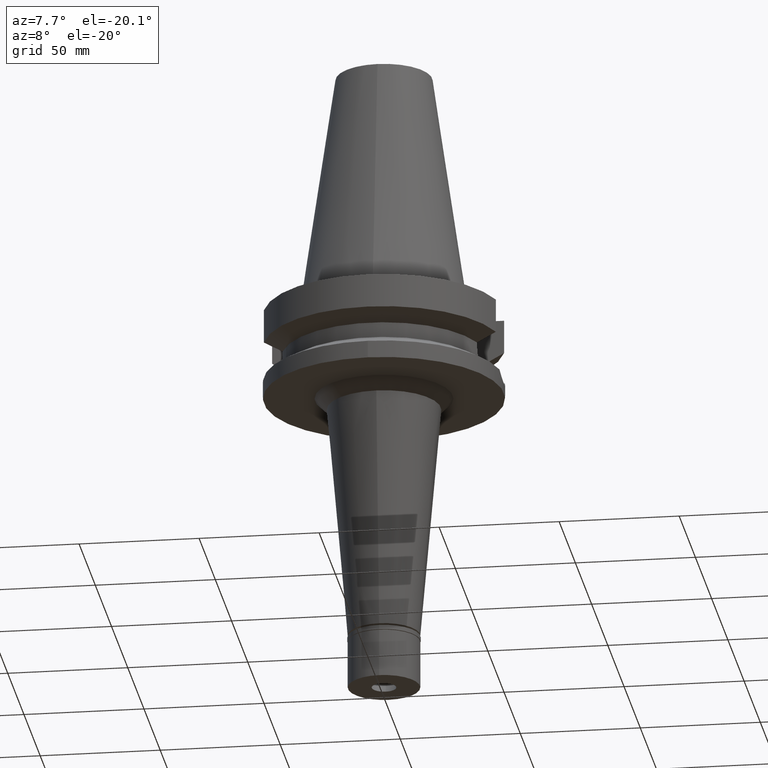
[diagram: clean part render]
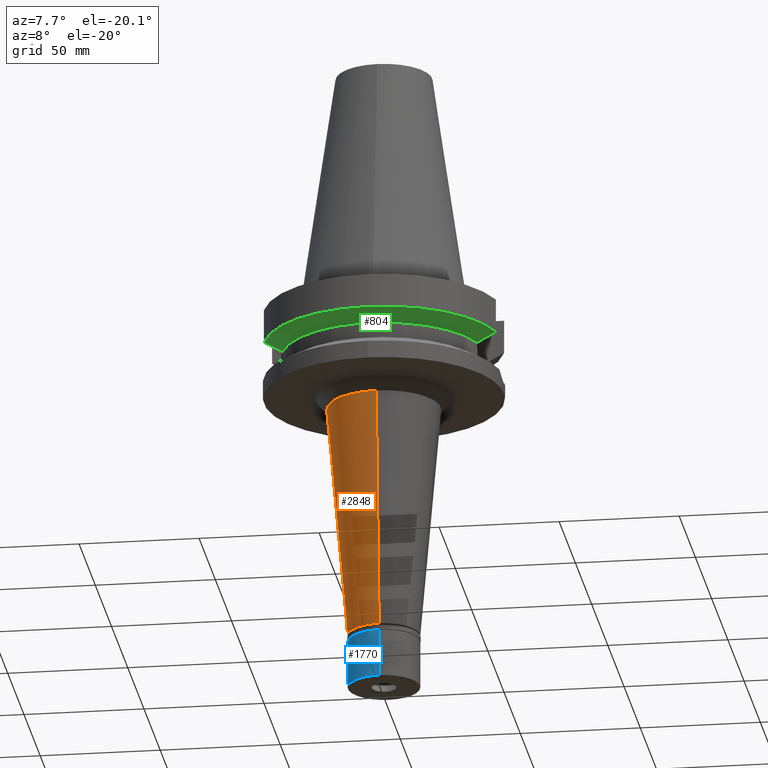
[diagram: same view with three faces highlighted in distinct colors, each labeled with its STEP entity id]
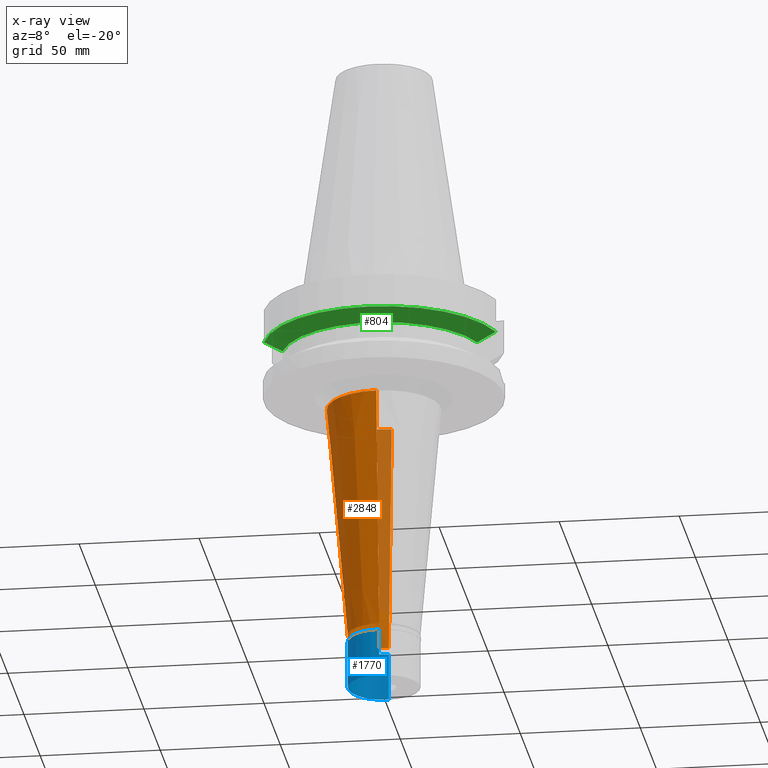
[diagram: x-ray of the same camera — body ghosted, the three highlighted faces saturated]
A machine part, auxiliary view with three faces highlighted in distinct colors.
The next image is the same camera in x-ray (body ghosted, the three faces saturated) — at least one of them is partly hidden behind the body in this view.
Their STEP definitions:

[orange] entity #2848 — the highlighted conical surface has half-angle 5 deg.
#116 = EDGE_LOOP ( 'NONE', ( #3019, #1730, #304, #2744 ) ) ;
#131 = CARTESIAN_POINT ( 'NONE',  ( 0.0000000000000000000, -15.00000000000000000, -142.1999999999999886 ) ) ;
#249 = FACE_OUTER_BOUND ( 'NONE', #116, .T. ) ;
#263 = DIRECTION ( 'NONE',  ( 0.0000000000000000000, 1.000000000000000000, 0.0000000000000000000 ) ) ;
#304 = ORIENTED_EDGE ( 'NONE', *, *, #3023, .T. ) ;
#398 = CARTESIAN_POINT ( 'NONE',  ( 0.0000000000000000000, 23.67887542176999816, -43.00000000000000000 ) ) ;
#406 = DIRECTION ( 'NONE',  ( 0.0000000000000000000, 0.08715574274764407992, -0.9961946980917467664 ) ) ;
#457 = EDGE_CURVE ( 'NONE', #1703, #2061, #2130, .T. ) ;
#750 = VECTOR ( 'NONE', #406, 1000.000000000000114 ) ;
#764 = CARTESIAN_POINT ( 'NONE',  ( 0.0000000000000000000, 0.0000000000000000000, -92.60000000000000853 ) ) ;
#839 = DIRECTION ( 'NONE',  ( 0.0000000000000000000, -1.000000000000000000, 0.0000000000000000000 ) ) ;
#847 = DIRECTION ( 'NONE',  ( 0.0000000000000000000, -0.08715574274764407992, -0.9961946980917467664 ) ) ;
#949 = DIRECTION ( 'NONE',  ( 0.0000000000000000000, 0.0000000000000000000, 1.000000000000000000 ) ) ;
#1024 = CARTESIAN_POINT ( 'NONE',  ( 0.0000000000000000000, 0.0000000000000000000, -43.00000000000000000 ) ) ;
#1461 = VECTOR ( 'NONE', #847, 1000.000000000000114 ) ;
#1644 = LINE ( 'NONE', #2632, #750 ) ;
#1678 = DIRECTION ( 'NONE',  ( 0.0000000000000000000, 0.0000000000000000000, 1.000000000000000000 ) ) ;
#1690 = AXIS2_PLACEMENT_3D ( 'NONE', #1024, #2070, #839 ) ;
#1703 = VERTEX_POINT ( 'NONE', #398 ) ;
#1730 = ORIENTED_EDGE ( 'NONE', *, *, #2752, .F. ) ;
#1760 = AXIS2_PLACEMENT_3D ( 'NONE', #2900, #1678, #1915 ) ;
#1881 = CARTESIAN_POINT ( 'NONE',  ( 0.0000000000000000000, -23.67887542176999816, -43.00000000000000000 ) ) ;
#1915 = DIRECTION ( 'NONE',  ( 0.0000000000000000000, 1.000000000000000000, 0.0000000000000000000 ) ) ;
#2061 = VERTEX_POINT ( 'NONE', #2361 ) ;
#2070 = DIRECTION ( 'NONE',  ( 0.0000000000000000000, 0.0000000000000000000, -1.000000000000000000 ) ) ;
#2098 = VERTEX_POINT ( 'NONE', #1881 ) ;
#2121 = EDGE_CURVE ( 'NONE', #2061, #3179, #2265, .T. ) ;
#2130 = LINE ( 'NONE', #2371, #1461 ) ;
#2147 = AXIS2_PLACEMENT_3D ( 'NONE', #764, #949, #263 ) ;
#2248 = CIRCLE ( 'NONE', #1690, 23.67887542176999816 ) ;
#2265 = CIRCLE ( 'NONE', #1760, 15.00000000000000000 ) ;
#2345 = CONICAL_SURFACE ( 'NONE', #2147, 19.33943771088999952, 0.08726646259969973729 ) ;
#2361 = CARTESIAN_POINT ( 'NONE',  ( 0.0000000000000000000, 15.00000000000000000, -142.1999999999999886 ) ) ;
#2371 = CARTESIAN_POINT ( 'NONE',  ( 0.0000000000000000000, 23.67887542176999816, -43.00000000000000000 ) ) ;
#2632 = CARTESIAN_POINT ( 'NONE',  ( 0.0000000000000000000, -23.67887542176999816, -43.00000000000000000 ) ) ;
#2744 = ORIENTED_EDGE ( 'NONE', *, *, #457, .T. ) ;
#2752 = EDGE_CURVE ( 'NONE', #2098, #3179, #1644, .T. ) ;
#2848 = ADVANCED_FACE ( 'NONE', ( #249 ), #2345, .T. ) ;
#2900 = CARTESIAN_POINT ( 'NONE',  ( 0.0000000000000000000, 0.0000000000000000000, -142.1999999999999886 ) ) ;
#3019 = ORIENTED_EDGE ( 'NONE', *, *, #2121, .T. ) ;
#3023 = EDGE_CURVE ( 'NONE', #2098, #1703, #2248, .T. ) ;
#3179 = VERTEX_POINT ( 'NONE', #131 ) ;

[blue] entity #1770 — the highlighted cylindrical surface (edge-blend (fillet) strip) has radius 15 mm, axis along (0, 0, -1).
#51 = CARTESIAN_POINT ( 'NONE',  ( 0.0000000000000000000, 15.00000000000000000, -2.000000000000000000 ) ) ;
#65 = CARTESIAN_POINT ( 'NONE',  ( 0.0000000000000000000, -15.00000000000000000, -2.000000000000000000 ) ) ;
#107 = DIRECTION ( 'NONE',  ( 0.0000000000000000000, 1.000000000000000000, 0.0000000000000000000 ) ) ;
#164 = ORIENTED_EDGE ( 'NONE', *, *, #912, .T. ) ;
#173 = VERTEX_POINT ( 'NONE', #1215 ) ;
#258 = EDGE_CURVE ( 'NONE', #173, #1715, #3013, .T. ) ;
#302 = DIRECTION ( 'NONE',  ( 0.0000000000000000000, 0.0000000000000000000, -1.000000000000000000 ) ) ;
#306 = VECTOR ( 'NONE', #2503, 1000.000000000000000 ) ;
#350 = AXIS2_PLACEMENT_3D ( 'NONE', #2180, #2909, #2922 ) ;
#420 = EDGE_CURVE ( 'NONE', #173, #1597, #1299, .T. ) ;
#627 = ORIENTED_EDGE ( 'NONE', *, *, #258, .F. ) ;
#685 = CIRCLE ( 'NONE', #1412, 15.00000000000000000 ) ;
#912 = EDGE_CURVE ( 'NONE', #1228, #1715, #685, .T. ) ;
#944 = EDGE_LOOP ( 'NONE', ( #164, #627, #1799, #1408 ) ) ;
#946 = CARTESIAN_POINT ( 'NONE',  ( 0.0000000000000000000, 15.00000000000000000, -22.00000000000000000 ) ) ;
#1077 = CARTESIAN_POINT ( 'NONE',  ( 0.0000000000000000000, 0.0000000000000000000, -22.00000000000000000 ) ) ;
#1215 = CARTESIAN_POINT ( 'NONE',  ( 0.0000000000000000000, -15.00000000000000000, -2.000000000000000000 ) ) ;
#1228 = VERTEX_POINT ( 'NONE', #946 ) ;
#1299 = CIRCLE ( 'NONE', #1717, 15.00000000000000000 ) ;
#1408 = ORIENTED_EDGE ( 'NONE', *, *, #1422, .T. ) ;
#1412 = AXIS2_PLACEMENT_3D ( 'NONE', #1077, #2831, #107 ) ;
#1422 = EDGE_CURVE ( 'NONE', #1597, #1228, #1557, .T. ) ;
#1557 = LINE ( 'NONE', #51, #1880 ) ;
#1597 = VERTEX_POINT ( 'NONE', #2858 ) ;
#1715 = VERTEX_POINT ( 'NONE', #3182 ) ;
#1717 = AXIS2_PLACEMENT_3D ( 'NONE', #2805, #2638, #3083 ) ;
#1770 = ADVANCED_FACE ( 'NONE', ( #2687 ), #1936, .T. ) ;
#1799 = ORIENTED_EDGE ( 'NONE', *, *, #420, .T. ) ;
#1880 = VECTOR ( 'NONE', #302, 1000.000000000000000 ) ;
#1936 = CYLINDRICAL_SURFACE ( 'NONE', #350, 15.00000000000000000 ) ;
#2180 = CARTESIAN_POINT ( 'NONE',  ( 0.0000000000000000000, 0.0000000000000000000, 0.0000000000000000000 ) ) ;
#2503 = DIRECTION ( 'NONE',  ( 0.0000000000000000000, 0.0000000000000000000, -1.000000000000000000 ) ) ;
#2638 = DIRECTION ( 'NONE',  ( 0.0000000000000000000, 0.0000000000000000000, -1.000000000000000000 ) ) ;
#2687 = FACE_OUTER_BOUND ( 'NONE', #944, .T. ) ;
#2805 = CARTESIAN_POINT ( 'NONE',  ( 0.0000000000000000000, 0.0000000000000000000, -2.000000000000000000 ) ) ;
#2831 = DIRECTION ( 'NONE',  ( 0.0000000000000000000, 0.0000000000000000000, 1.000000000000000000 ) ) ;
#2858 = CARTESIAN_POINT ( 'NONE',  ( 0.0000000000000000000, 15.00000000000000000, -2.000000000000000000 ) ) ;
#2909 = DIRECTION ( 'NONE',  ( 0.0000000000000000000, 0.0000000000000000000, -1.000000000000000000 ) ) ;
#2922 = DIRECTION ( 'NONE',  ( 0.0000000000000000000, -1.000000000000000000, 0.0000000000000000000 ) ) ;
#3013 = LINE ( 'NONE', #65, #306 ) ;
#3083 = DIRECTION ( 'NONE',  ( 0.0000000000000000000, -1.000000000000000000, 0.0000000000000000000 ) ) ;
#3182 = CARTESIAN_POINT ( 'NONE',  ( 0.0000000000000000000, -15.00000000000000000, -22.00000000000000000 ) ) ;

[green] entity #804 — the highlighted conical surface has half-angle 60 deg.
#31 = FACE_OUTER_BOUND ( 'NONE', #1352, .T. ) ;
#36 = CARTESIAN_POINT ( 'NONE',  ( 42.90862839512466564, -12.84999314235032486, -18.67324584512087071 ) ) ;
#232 = EDGE_CURVE ( 'NONE', #859, #486, #299, .T. ) ;
#280 = AXIS2_PLACEMENT_3D ( 'NONE', #2561, #308, #2264 ) ;
#299 = B_SPLINE_CURVE_WITH_KNOTS ( 'NONE', 3,
 ( #2275, #36, #1779, #3032 ),
 .UNSPECIFIED., .F., .F.,
 ( 4, 4 ),
 ( 0.0000000000000000000, 1.000000000000000000 ),
 .UNSPECIFIED. ) ;
#308 = DIRECTION ( 'NONE',  ( 0.0000000000000000000, 0.0000000000000000000, 1.000000000000000000 ) ) ;
#390 = CARTESIAN_POINT ( 'NONE',  ( -45.51179901536024630, -12.85000770991706176, -17.22986705878139446 ) ) ;
#486 = VERTEX_POINT ( 'NONE', #1890 ) ;
#491 = ORIENTED_EDGE ( 'NONE', *, *, #824, .T. ) ;
#568 = CONICAL_SURFACE ( 'NONE', #2177, 46.25000000000000000, 1.047197551196400456 ) ;
#654 = DIRECTION ( 'NONE',  ( 0.0000000000000000000, 1.000000000000000000, 0.0000000000000000000 ) ) ;
#688 = CARTESIAN_POINT ( 'NONE',  ( -48.32056912814000071, -12.85000385727999905, -15.66265768250999990 ) ) ;
#804 = ADVANCED_FACE ( 'NONE', ( #31 ), #568, .T. ) ;
#824 = EDGE_CURVE ( 'NONE', #2617, #2936, #2556, .T. ) ;
#859 = VERTEX_POINT ( 'NONE', #2365 ) ;
#980 = CARTESIAN_POINT ( 'NONE',  ( -40.51083297203000200, -12.84999657244999938, -19.99284555869999735 ) ) ;
#1075 = EDGE_CURVE ( 'NONE', #859, #2936, #2478, .T. ) ;
#1087 = AXIS2_PLACEMENT_3D ( 'NONE', #1137, #1914, #3071 ) ;
#1137 = CARTESIAN_POINT ( 'NONE',  ( 0.0000000000000000000, 1.006319759053999930E-14, -19.99281925464999787 ) ) ;
#1352 = EDGE_LOOP ( 'NONE', ( #491, #1781, #2091, #2597 ) ) ;
#1390 = CARTESIAN_POINT ( 'NONE',  ( -40.51083297203000200, -12.84999657244999938, -19.99284555869999735 ) ) ;
#1485 = CIRCLE ( 'NONE', #280, 50.00000000000000000 ) ;
#1761 = CARTESIAN_POINT ( 'NONE',  ( 0.0000000000000000000, 1.006319759053999930E-14, -17.82775574519000017 ) ) ;
#1779 = CARTESIAN_POINT ( 'NONE',  ( 45.51179445209620411, -12.85000771148890308, -17.22986957481731451 ) ) ;
#1781 = ORIENTED_EDGE ( 'NONE', *, *, #1075, .F. ) ;
#1890 = CARTESIAN_POINT ( 'NONE',  ( 48.32057015392000210, -12.84999999999999964, -15.66269223573000069 ) ) ;
#1914 = DIRECTION ( 'NONE',  ( 0.0000000000000000000, 0.0000000000000000000, -1.000000000000000000 ) ) ;
#2091 = ORIENTED_EDGE ( 'NONE', *, *, #232, .T. ) ;
#2177 = AXIS2_PLACEMENT_3D ( 'NONE', #1761, #2616, #654 ) ;
#2264 = DIRECTION ( 'NONE',  ( 0.0000000000000000000, -1.000000000000000000, 0.0000000000000000000 ) ) ;
#2275 = CARTESIAN_POINT ( 'NONE',  ( 40.51083188481999997, -12.84999999999999964, -19.99281925464999787 ) ) ;
#2333 = CARTESIAN_POINT ( 'NONE',  ( -48.32056912814000071, -12.85000385727999905, -15.66265768250999990 ) ) ;
#2365 = CARTESIAN_POINT ( 'NONE',  ( 40.51083188481999997, -12.84999999999999964, -19.99281925464999787 ) ) ;
#2478 = CIRCLE ( 'NONE', #1087, 42.50000000000002132 ) ;
#2547 = CARTESIAN_POINT ( 'NONE',  ( -42.90862489405132152, -12.84999313793018416, -18.67324780319469113 ) ) ;
#2556 = B_SPLINE_CURVE_WITH_KNOTS ( 'NONE', 3,
 ( #2333, #390, #2547, #1390 ),
 .UNSPECIFIED., .F., .F.,
 ( 4, 4 ),
 ( 0.0000000000000000000, 1.000000000000000000 ),
 .UNSPECIFIED. ) ;
#2561 = CARTESIAN_POINT ( 'NONE',  ( 0.0000000000000000000, 1.006319759053999930E-14, -15.66269223573000069 ) ) ;
#2597 = ORIENTED_EDGE ( 'NONE', *, *, #3073, .F. ) ;
#2616 = DIRECTION ( 'NONE',  ( 0.0000000000000000000, 0.0000000000000000000, 1.000000000000000000 ) ) ;
#2617 = VERTEX_POINT ( 'NONE', #688 ) ;
#2936 = VERTEX_POINT ( 'NONE', #980 ) ;
#3032 = CARTESIAN_POINT ( 'NONE',  ( 48.32057015392000210, -12.84999999999999964, -15.66269223573000069 ) ) ;
#3071 = DIRECTION ( 'NONE',  ( 0.9531960443486575674, -0.3023529411764863672, 0.0000000000000000000 ) ) ;
#3073 = EDGE_CURVE ( 'NONE', #2617, #486, #1485, .T. ) ;